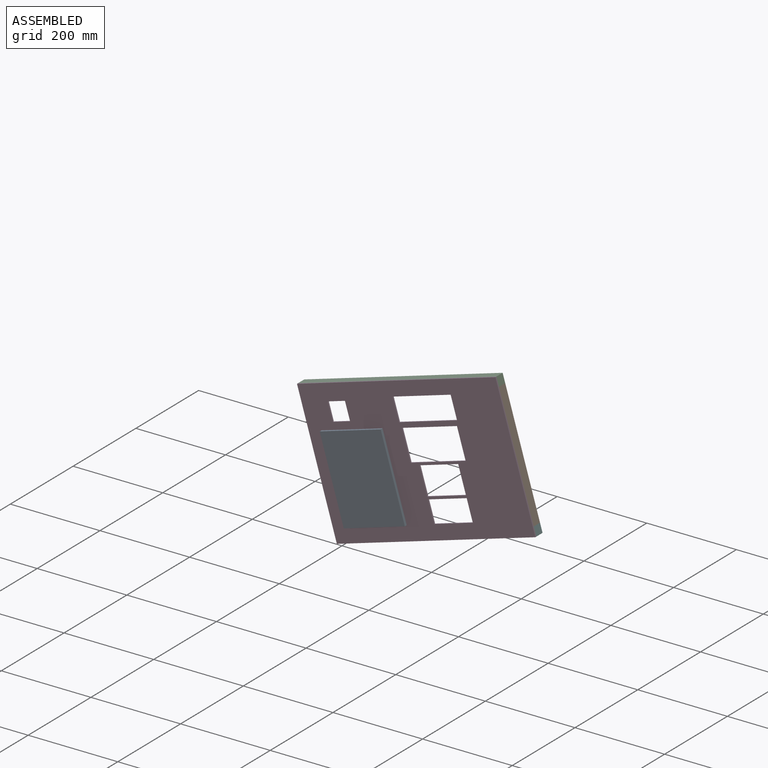
[diagram: assembled view]
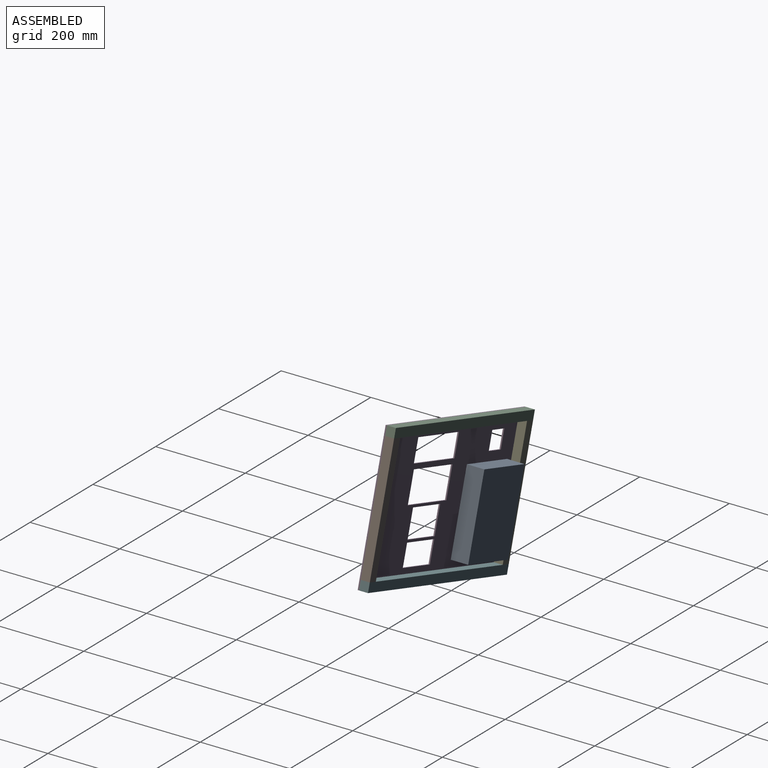
[diagram: assembled view, second angle]
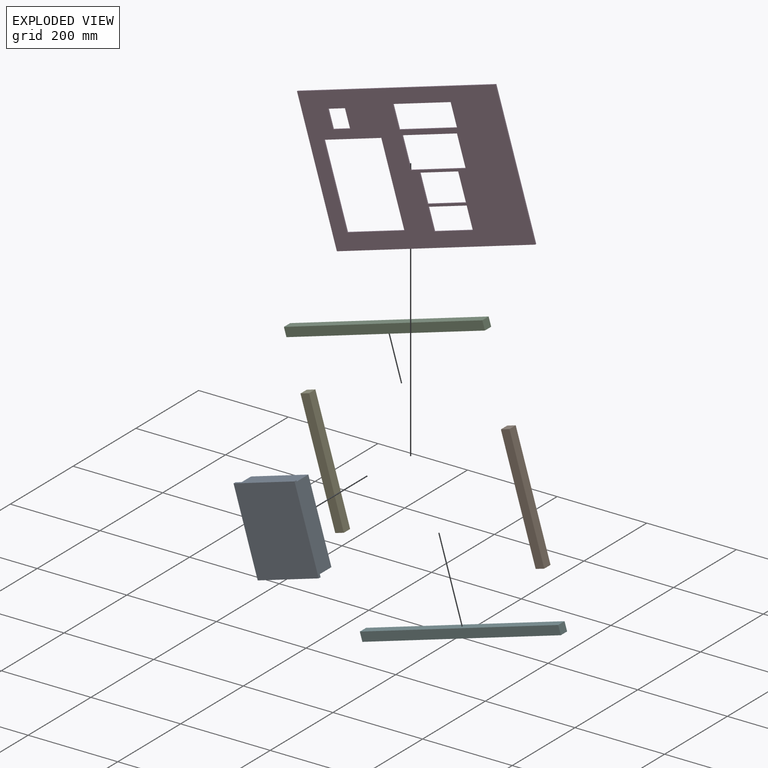
[diagram: exploded view]
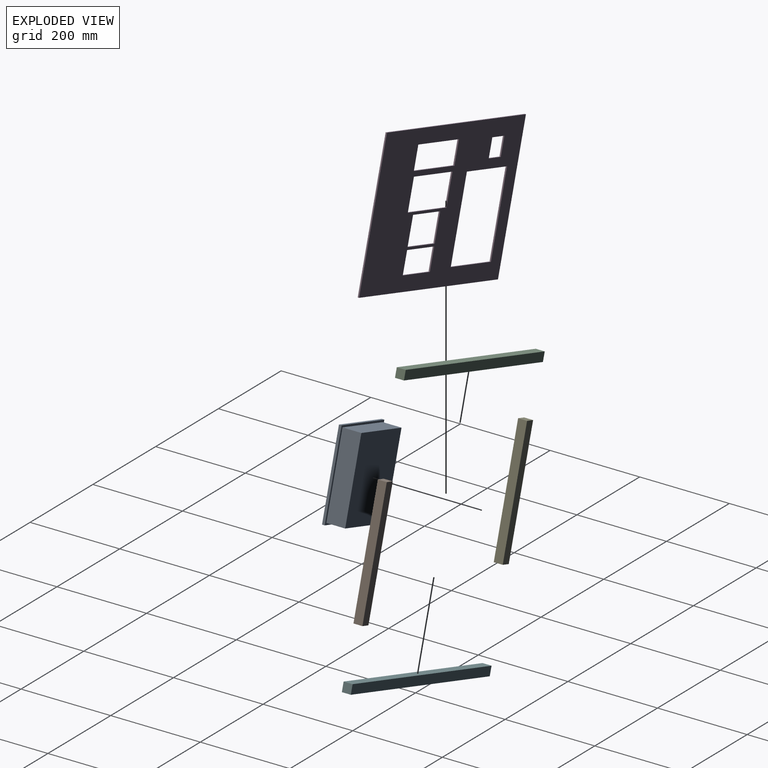
[diagram: exploded view, second angle]
ASSEMBLY  parts=6 mates=5
PART A: 11 faces, bbox 189x142x48 mm
  f0: plane 189x142mm, normal (0,0,-1), area 2741.2mm2, adj f1,f2,f3,f4,f6,f7,f8,f9
  f1: plane 189x6mm, normal (0,-1,0), area 1134mm2, adj f0,f2,f4,f5
  f2: plane 142x6mm, normal (1,0,0), area 852mm2, adj f0,f1,f3,f5
  f3: plane 189x6mm, normal (0,1,0), area 1134mm2, adj f0,f2,f4,f5
  f4: plane 142x6mm, normal (-1,0,0), area 852mm2, adj f0,f1,f3,f5
  f5: plane 189x142mm, normal (0,0,1), area 26838mm2, adj f1,f2,f3,f4
  f6: plane 133.5x42mm, normal (-1,0,0), area 5607mm2, adj f0,f7,f9,f10
  f7: plane 180.5x42mm, normal (0,-1,0), area 7581mm2, adj f0,f6,f8,f10
  f8: plane 133.5x42mm, normal (1,0,0), area 5607mm2, adj f0,f7,f9,f10
  f9: plane 180.5x42mm, normal (0,1,0), area 7581mm2, adj f0,f6,f8,f10
  f10: plane 180.5x133.5mm, normal (0,0,-1), area 24096.7mm2, adj f6,f7,f8,f9
PART B: 6 faces, bbox 20x20x272 mm
  f0: plane 272x20mm, normal (0,-1,0), area 5440mm2, adj f1,f3,f4,f5
  f1: plane 272x20mm, normal (1,0,0), area 5440mm2, adj f0,f2,f4,f5
  f2: plane 272x20mm, normal (0,1,0), area 5440mm2, adj f1,f3,f4,f5
  f3: plane 272x20mm, normal (-1,0,0), area 5440mm2, adj f0,f2,f4,f5
  f4: plane 20x20mm, normal (0,0,1), area 400mm2, adj f0,f1,f2,f3
  f5: plane 20x20mm, normal (0,0,-1), area 400mm2, adj f0,f1,f2,f3
PART C: 6 faces, bbox 20x20x462 mm
  f0: plane 462x20mm, normal (0,-1,0), area 9240mm2, adj f1,f3,f4,f5
  f1: plane 462x20mm, normal (1,0,0), area 9240mm2, adj f0,f2,f4,f5
  f2: plane 462x20mm, normal (0,1,0), area 9240mm2, adj f1,f3,f4,f5
  f3: plane 462x20mm, normal (-1,0,0), area 9240mm2, adj f0,f2,f4,f5
  f4: plane 20x20mm, normal (0,0,1), area 400mm2, adj f0,f1,f2,f3
  f5: plane 20x20mm, normal (0,0,-1), area 400mm2, adj f0,f1,f2,f3
PART D: 30 faces, bbox 312x3x462 mm
  f0: plane 462x312mm, normal (0,-1,0), area 93183.2mm2, adj f2,f3,f4,f5,f6,f7,f8,f9
  f1: plane 462x312mm, normal (0,1,0), area 93183.3mm2, adj f2,f3,f4,f5,f6,f7,f8,f9
  f2: plane 312x3mm, normal (0,0,-1), area 936mm2, adj f0,f1,f3,f5
  f3: plane 462x3mm, normal (1,0,0), area 1386mm2, adj f0,f1,f2,f4
  f4: plane 312x3mm, normal (0,0,1), area 936mm2, adj f0,f1,f3,f5
  f5: plane 462x3mm, normal (-1,0,0), area 1386mm2, adj f0,f1,f2,f4
  f6: plane 133.5x3mm, normal (1,0,0), area 400.5mm2, adj f0,f1,f7,f9
  f7: plane 180.5x3mm, normal (0,0,1), area 541.5mm2, adj f0,f1,f6,f8
  f8: plane 133.5x3mm, normal (-1,0,0), area 400.5mm2, adj f0,f1,f7,f9
  f9: plane 180.5x3mm, normal (0,0,-1), area 541.5mm2, adj f0,f1,f6,f8
  f10: plane 40x3mm, normal (-1,0,0), area 120mm2, adj f0,f1,f11,f13
  f11: plane 40x3mm, normal (0,0,-1), area 120mm2, adj f0,f1,f10,f12
  f12: plane 40x3mm, normal (1,0,0), area 120mm2, adj f0,f1,f11,f13
  f13: plane 40x3mm, normal (0,0,1), area 120mm2, adj f0,f1,f10,f12
  f14: plane 135x3mm, normal (-1,0,0), area 405mm2, adj f0,f1,f16,f17
  f15: plane 135x3mm, normal (1,0,0), area 405mm2, adj f0,f1,f16,f17
  f16: plane 50x3mm, normal (0,0,-1), area 150mm2, adj f0,f1,f14,f15
  f17: plane 50x3mm, normal (0,0,1), area 150mm2, adj f0,f1,f14,f15
  f18: plane 128x3mm, normal (1,0,0), area 384mm2, adj f0,f1,f19,f21
  f19: plane 68x3mm, normal (0,0,-1), area 204mm2, adj f0,f1,f18,f20
  f20: plane 128x3mm, normal (-1,0,0), area 384mm2, adj f0,f1,f19,f21
  f21: plane 68x3mm, normal (0,0,1), area 204mm2, adj f0,f1,f18,f20
  f22: plane 61x3mm, normal (0,0,-1), area 183mm2, adj f0,f1,f24,f25
  f23: plane 61x3mm, normal (0,0,1), area 183mm2, adj f0,f1,f24,f25
  f24: plane 90x3mm, normal (1,0,0), area 270mm2, adj f0,f1,f22,f23
  f25: plane 90x3mm, normal (-1,0,0), area 270mm2, adj f0,f1,f22,f23
  f26: plane 90x3mm, normal (1,0,0), area 270mm2, adj f0,f1,f27,f29
  f27: plane 48x3mm, normal (0,0,1), area 144mm2, adj f0,f1,f26,f28
  f28: plane 90x3mm, normal (-1,0,0), area 270mm2, adj f0,f1,f27,f29
  f29: plane 48x3mm, normal (0,0,-1), area 144mm2, adj f0,f1,f26,f28
PART E: same geometry as B
PART F: same geometry as C
PLACE A rot(axis=(0.69,0.51,-0.51),110.9deg) t=(-112.33,59.9,-54.82)mm
PLACE B rot(axis=(0,-1,0),16.6deg) t=(215.52,72.9,74.09)mm
PLACE C rot(axis=(0,-1,0),106.6deg) t=(-37.95,72.9,150.96)mm
PLACE D rot(axis=(0,1,0),73.4deg) t=(3.71,62.9,11.03)mm
PLACE E rot(axis=(0,-1,0),16.6deg) t=(-208.1,72.9,-52.03)mm
PLACE F rot(axis=(0,1,0),73.4deg) t=(45.37,72.9,-128.9)mm
MATE fastened C.f3 <-> E.f4  axis (0.29,0,-0.96) through (-256.49,82.9,75.46)mm
MATE fastened E.f5 <-> F.f3  axis (0.29,0,-0.96) through (-178.88,82.9,-185.23)mm
MATE fastened B.f4 <-> C.f3  axis (-0.29,0,0.96) through (186.3,82.9,207.29)mm
MATE fastened D.f1 <-> F.f0  axis (0,1,0) through (-173.17,62.9,-204.4)mm
MATE fastened A.f0 <-> D.f0  axis (0,1,0) through (-150.55,59.9,-160.36)mm
